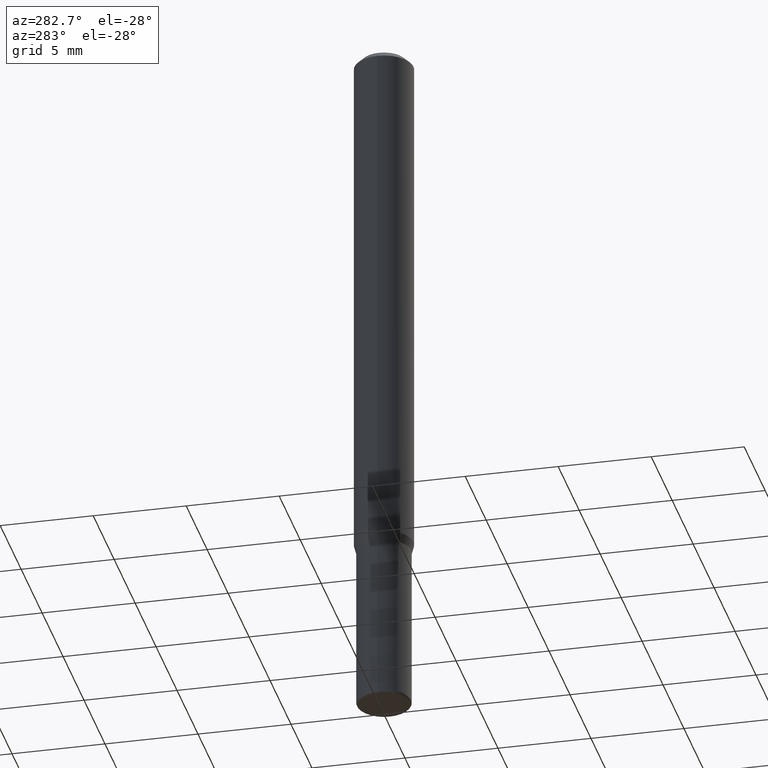
[diagram: clean part render]
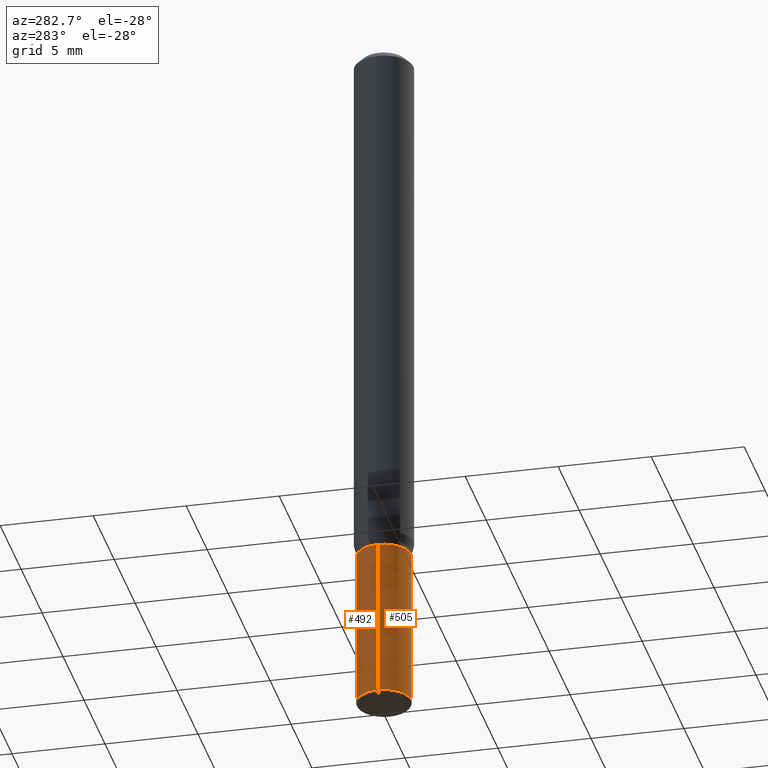
[diagram: same view with one multi-face feature highlighted, each face labeled with its STEP entity id]
A machine part, auxiliary view. The highlighted faces form ONE feature: a constant-radius fillet chain: 2 tangent blend faces with common blend radius 1.4605 mm. The faces share edges in the B-rep.
Their STEP definitions:
[1] entity #492 (Cylinder):
#1 = CARTESIAN_POINT ( 'NONE',  ( 0.000000000000000000, 0.000000000000000000, 0.000000000000000000 ) ) ;
#3 = CIRCLE ( 'NONE', #64, 0.05750000000000000250 ) ;
#28 = ORIENTED_EDGE ( 'NONE', *, *, #149, .F. ) ;
#64 = AXIS2_PLACEMENT_3D ( 'NONE', #388, #147, #150 ) ;
#87 = EDGE_CURVE ( 'NONE', #308, #331, #368, .T. ) ;
#119 = DIRECTION ( 'NONE',  ( 1.000000000000000000, -6.982962677686265922E-15, 4.876176775795935793E-29 ) ) ;
#123 = CARTESIAN_POINT ( 'NONE',  ( 0.05750000000000018291, -5.621284955537464739E-15, -1.495000000000000107 ) ) ;
#130 = DIRECTION ( 'NONE',  ( -2.445468806185136877E-29, 3.491481338843145188E-15, 1.000000000000000000 ) ) ;
#147 = DIRECTION ( 'NONE',  ( -2.445468806185136597E-29, 3.491481338843145583E-15, 1.000000000000000000 ) ) ;
#149 = EDGE_CURVE ( 'NONE', #331, #511, #3, .T. ) ;
#150 = DIRECTION ( 'NONE',  ( 1.000000000000000000, -6.982962677686273810E-15, 0.000000000000000000 ) ) ;
#173 = CARTESIAN_POINT ( 'NONE',  ( 0.05750000000000008576, -4.015203539669609078E-16, 2.803801646082667145E-30 ) ) ;
#176 = LINE ( 'NONE', #486, #312 ) ;
#202 = DIRECTION ( 'NONE',  ( 1.000000000000000000, -6.982962677686268288E-15, 0.000000000000000000 ) ) ;
#232 = DIRECTION ( 'NONE',  ( -2.445468806185136597E-29, 3.491481338843145583E-15, 1.000000000000000000 ) ) ;
#242 = VERTEX_POINT ( 'NONE', #403 ) ;
#250 = DIRECTION ( 'NONE',  ( -2.445468806185136877E-29, 3.491481338843145188E-15, 1.000000000000000000 ) ) ;
#257 = EDGE_LOOP ( 'NONE', ( #487, #490, #28, #366 ) ) ;
#281 = DIRECTION ( 'NONE',  ( -2.445468806185136597E-29, 3.491481338843145583E-15, 1.000000000000000000 ) ) ;
#286 = CARTESIAN_POINT ( 'NONE',  ( 0.05750000000000000250, -4.434181300330794192E-15, -1.155000000000000027 ) ) ;
#293 = VECTOR ( 'NONE', #250, 39.37007874015748143 ) ;
#308 = VERTEX_POINT ( 'NONE', #123 ) ;
#312 = VECTOR ( 'NONE', #130, 39.37007874015748143 ) ;
#331 = VERTEX_POINT ( 'NONE', #286 ) ;
#333 = EDGE_CURVE ( 'NONE', #242, #511, #176, .T. ) ;
#346 = CIRCLE ( 'NONE', #475, 0.05750000000000018291 ) ;
#355 = AXIS2_PLACEMENT_3D ( 'NONE', #1, #232, #119 ) ;
#361 = CARTESIAN_POINT ( 'NONE',  ( 3.655975865246779122E-29, -5.219764601570503141E-15, -1.495000000000000107 ) ) ;
#366 = ORIENTED_EDGE ( 'NONE', *, *, #87, .F. ) ;
#368 = LINE ( 'NONE', #173, #293 ) ;
#388 = CARTESIAN_POINT ( 'NONE',  ( 2.824516471143833307E-29, -4.032660946363833383E-15, -1.155000000000000027 ) ) ;
#403 = CARTESIAN_POINT ( 'NONE',  ( -0.05750000000000016903, -4.217650700905109109E-15, -1.495000000000000107 ) ) ;
#441 = CYLINDRICAL_SURFACE ( 'NONE', #355, 0.05750000000000008576 ) ;
#462 = FACE_OUTER_BOUND ( 'NONE', #257, .T. ) ;
#475 = AXIS2_PLACEMENT_3D ( 'NONE', #361, #281, #202 ) ;
#486 = CARTESIAN_POINT ( 'NONE',  ( -0.05750000000000008576, 4.085620730620582163E-16, -2.828387676896575267E-30 ) ) ;
#487 = ORIENTED_EDGE ( 'NONE', *, *, #514, .T. ) ;
#490 = ORIENTED_EDGE ( 'NONE', *, *, #333, .T. ) ;
#492 = ADVANCED_FACE ( 'NONE', ( #462 ), #441, .T. ) ;
#511 = VERTEX_POINT ( 'NONE', #513 ) ;
#513 = CARTESIAN_POINT ( 'NONE',  ( -0.05750000000000000250, -4.217650700905109898E-15, -1.155000000000000027 ) ) ;
#514 = EDGE_CURVE ( 'NONE', #308, #242, #346, .T. ) ;
[2] entity #505 (Cylinder):
#19 = ORIENTED_EDGE ( 'NONE', *, *, #305, .F. ) ;
#39 = DIRECTION ( 'NONE',  ( -2.445468806185136597E-29, 3.491481338843145583E-15, 1.000000000000000000 ) ) ;
#44 = AXIS2_PLACEMENT_3D ( 'NONE', #378, #101, #375 ) ;
#69 = ORIENTED_EDGE ( 'NONE', *, *, #233, .T. ) ;
#75 = CARTESIAN_POINT ( 'NONE',  ( 3.655975865246779122E-29, -5.219764601570503141E-15, -1.495000000000000107 ) ) ;
#87 = EDGE_CURVE ( 'NONE', #308, #331, #368, .T. ) ;
#101 = DIRECTION ( 'NONE',  ( -2.445468806185136597E-29, 3.491481338843145583E-15, 1.000000000000000000 ) ) ;
#117 = CARTESIAN_POINT ( 'NONE',  ( 2.824516471143833307E-29, -4.032660946363833383E-15, -1.155000000000000027 ) ) ;
#123 = CARTESIAN_POINT ( 'NONE',  ( 0.05750000000000018291, -5.621284955537464739E-15, -1.495000000000000107 ) ) ;
#130 = DIRECTION ( 'NONE',  ( -2.445468806185136877E-29, 3.491481338843145188E-15, 1.000000000000000000 ) ) ;
#137 = CIRCLE ( 'NONE', #211, 0.05750000000000000250 ) ;
#152 = DIRECTION ( 'NONE',  ( 1.000000000000000000, -6.982962677686268288E-15, 0.000000000000000000 ) ) ;
#153 = ORIENTED_EDGE ( 'NONE', *, *, #333, .F. ) ;
#158 = DIRECTION ( 'NONE',  ( 1.000000000000000000, -6.982962677686273810E-15, 0.000000000000000000 ) ) ;
#173 = CARTESIAN_POINT ( 'NONE',  ( 0.05750000000000008576, -4.015203539669609078E-16, 2.803801646082667145E-30 ) ) ;
#176 = LINE ( 'NONE', #486, #312 ) ;
#211 = AXIS2_PLACEMENT_3D ( 'NONE', #117, #230, #158 ) ;
#230 = DIRECTION ( 'NONE',  ( -2.445468806185136597E-29, 3.491481338843145583E-15, 1.000000000000000000 ) ) ;
#233 = EDGE_CURVE ( 'NONE', #242, #308, #501, .T. ) ;
#242 = VERTEX_POINT ( 'NONE', #403 ) ;
#250 = DIRECTION ( 'NONE',  ( -2.445468806185136877E-29, 3.491481338843145188E-15, 1.000000000000000000 ) ) ;
#254 = FACE_OUTER_BOUND ( 'NONE', #440, .T. ) ;
#276 = AXIS2_PLACEMENT_3D ( 'NONE', #75, #39, #152 ) ;
#286 = CARTESIAN_POINT ( 'NONE',  ( 0.05750000000000000250, -4.434181300330794192E-15, -1.155000000000000027 ) ) ;
#293 = VECTOR ( 'NONE', #250, 39.37007874015748143 ) ;
#305 = EDGE_CURVE ( 'NONE', #511, #331, #137, .T. ) ;
#308 = VERTEX_POINT ( 'NONE', #123 ) ;
#312 = VECTOR ( 'NONE', #130, 39.37007874015748143 ) ;
#314 = ORIENTED_EDGE ( 'NONE', *, *, #87, .T. ) ;
#331 = VERTEX_POINT ( 'NONE', #286 ) ;
#333 = EDGE_CURVE ( 'NONE', #242, #511, #176, .T. ) ;
#368 = LINE ( 'NONE', #173, #293 ) ;
#375 = DIRECTION ( 'NONE',  ( 1.000000000000000000, -6.982962677686265922E-15, 4.876176775795935793E-29 ) ) ;
#378 = CARTESIAN_POINT ( 'NONE',  ( 0.000000000000000000, 0.000000000000000000, 0.000000000000000000 ) ) ;
#403 = CARTESIAN_POINT ( 'NONE',  ( -0.05750000000000016903, -4.217650700905109109E-15, -1.495000000000000107 ) ) ;
#416 = CYLINDRICAL_SURFACE ( 'NONE', #44, 0.05750000000000008576 ) ;
#440 = EDGE_LOOP ( 'NONE', ( #153, #69, #314, #19 ) ) ;
#486 = CARTESIAN_POINT ( 'NONE',  ( -0.05750000000000008576, 4.085620730620582163E-16, -2.828387676896575267E-30 ) ) ;
#501 = CIRCLE ( 'NONE', #276, 0.05750000000000018291 ) ;
#505 = ADVANCED_FACE ( 'NONE', ( #254 ), #416, .T. ) ;
#511 = VERTEX_POINT ( 'NONE', #513 ) ;
#513 = CARTESIAN_POINT ( 'NONE',  ( -0.05750000000000000250, -4.217650700905109898E-15, -1.155000000000000027 ) ) ;